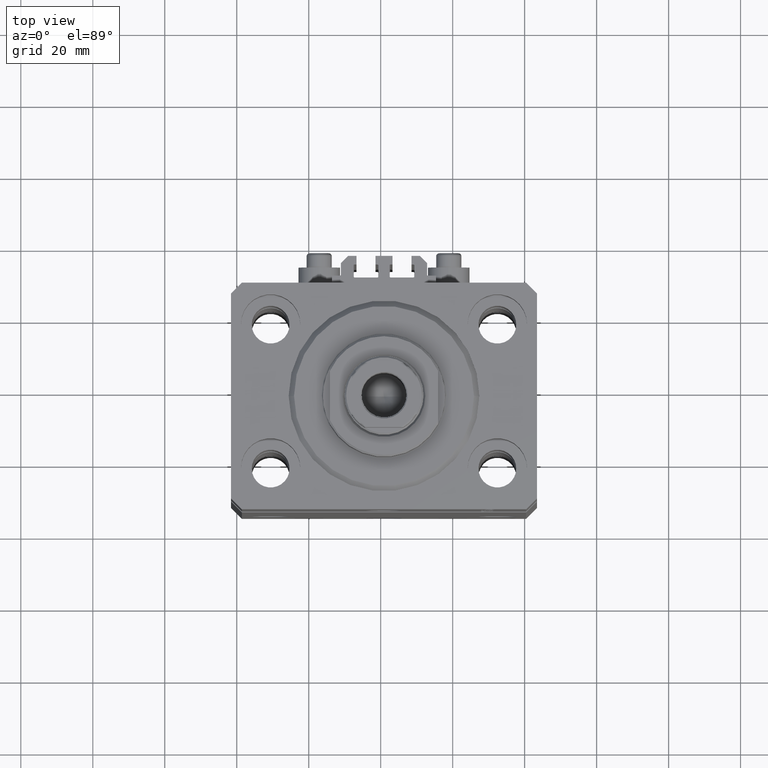
[diagram: clean part render]
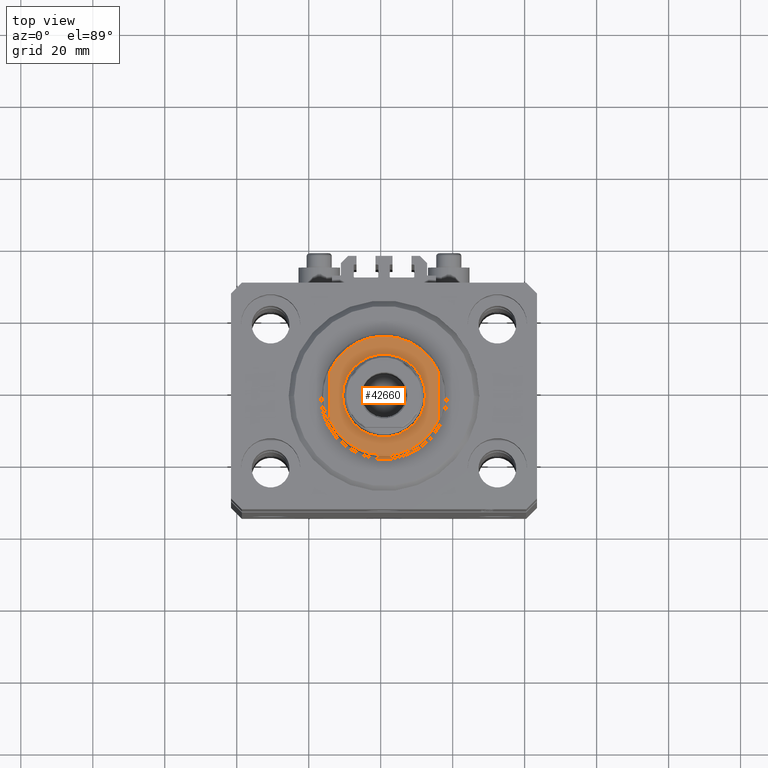
[diagram: same view with one face highlighted and labeled with its STEP entity id]
A machine part, top view. The second image highlights one B-rep face of the part: STEP entity #42660.
In plain terms, the highlighted planar face has unit normal (0, 0, 1).
Its self-contained STEP definition (entity closure, byte-faithful):
#518 = EDGE_CURVE ( 'NONE', #28472, #35227, #28455, .T. ) ;
#1304 = VECTOR ( 'NONE', #27157, 1000.000000000000000 ) ;
#2769 = CARTESIAN_POINT ( 'NONE',  ( 0.000000000000000000, 0.000000000000000000, -7.000000000000000000 ) ) ;
#3521 = FACE_BOUND ( 'NONE', #46338, .T. ) ;
#4639 = CARTESIAN_POINT ( 'NONE',  ( -11.50000000000001776, 0.000000000000000000, -7.000000000000000000 ) ) ;
#5197 = VERTEX_POINT ( 'NONE', #4639 ) ;
#6753 = VECTOR ( 'NONE', #22843, 1000.000000000000000 ) ;
#7567 = DIRECTION ( 'NONE',  ( -0.000000000000000000, -0.000000000000000000, 1.000000000000000000 ) ) ;
#7812 = DIRECTION ( 'NONE',  ( -1.000000000000000000, 0.000000000000000000, 0.000000000000000000 ) ) ;
#7991 = VERTEX_POINT ( 'NONE', #9887 ) ;
#8172 = DIRECTION ( 'NONE',  ( 0.000000000000000000, 0.000000000000000000, -1.000000000000000000 ) ) ;
#8292 = CIRCLE ( 'NONE', #42088, 16.50000000000002132 ) ;
#8727 = CARTESIAN_POINT ( 'NONE',  ( -14.99999999999999645, 6.873863542433817031, -7.000000000000000000 ) ) ;
#8898 = VERTEX_POINT ( 'NONE', #39179 ) ;
#9887 = CARTESIAN_POINT ( 'NONE',  ( 14.99999999999999645, 6.873863542433817031, -7.000000000000000000 ) ) ;
#10800 = CARTESIAN_POINT ( 'NONE',  ( -15.00000000000000000, -42.42640687119285303, -7.000000000000000000 ) ) ;
#10820 = EDGE_CURVE ( 'NONE', #8898, #5197, #11347, .T. ) ;
#11347 = CIRCLE ( 'NONE', #12169, 11.50000000000001776 ) ;
#11409 = AXIS2_PLACEMENT_3D ( 'NONE', #18520, #8172, #26140 ) ;
#11611 = FACE_OUTER_BOUND ( 'NONE', #37000, .T. ) ;
#11944 = EDGE_CURVE ( 'NONE', #7991, #28472, #16075, .T. ) ;
#12169 = AXIS2_PLACEMENT_3D ( 'NONE', #18403, #7567, #7812 ) ;
#12550 = DIRECTION ( 'NONE',  ( -1.000000000000000000, 0.000000000000000000, 0.000000000000000000 ) ) ;
#15844 = DIRECTION ( 'NONE',  ( -1.000000000000000000, 0.000000000000000000, 0.000000000000000000 ) ) ;
#16075 = LINE ( 'NONE', #27404, #1304 ) ;
#16486 = DIRECTION ( 'NONE',  ( -0.000000000000000000, -0.000000000000000000, 1.000000000000000000 ) ) ;
#16512 = ORIENTED_EDGE ( 'NONE', *, *, #42275, .T. ) ;
#18403 = CARTESIAN_POINT ( 'NONE',  ( 0.000000000000000000, 0.000000000000000000, -7.000000000000000000 ) ) ;
#18520 = CARTESIAN_POINT ( 'NONE',  ( 0.000000000000000000, 0.000000000000000000, -7.000000000000000000 ) ) ;
#18536 = AXIS2_PLACEMENT_3D ( 'NONE', #43058, #16486, #12550 ) ;
#20110 = CIRCLE ( 'NONE', #18536, 11.50000000000001776 ) ;
#21440 = ORIENTED_EDGE ( 'NONE', *, *, #11944, .T. ) ;
#22270 = ORIENTED_EDGE ( 'NONE', *, *, #518, .T. ) ;
#22843 = DIRECTION ( 'NONE',  ( -0.000000000000000000, -1.000000000000000000, -0.000000000000000000 ) ) ;
#22925 = VERTEX_POINT ( 'NONE', #8727 ) ;
#22985 = ORIENTED_EDGE ( 'NONE', *, *, #27099, .F. ) ;
#24699 = ORIENTED_EDGE ( 'NONE', *, *, #10820, .T. ) ;
#26140 = DIRECTION ( 'NONE',  ( -1.000000000000000000, 0.000000000000000000, -0.000000000000000000 ) ) ;
#26229 = CARTESIAN_POINT ( 'NONE',  ( -14.99999999999999645, -6.873863542433817031, -7.000000000000000000 ) ) ;
#26446 = CARTESIAN_POINT ( 'NONE',  ( 0.000000000000000000, 0.000000000000000000, -7.000000000000000000 ) ) ;
#26538 = LINE ( 'NONE', #10800, #6753 ) ;
#27099 = EDGE_CURVE ( 'NONE', #22925, #35227, #26538, .T. ) ;
#27157 = DIRECTION ( 'NONE',  ( 0.000000000000000000, -1.000000000000000000, -0.000000000000000000 ) ) ;
#27404 = CARTESIAN_POINT ( 'NONE',  ( 15.00000000000000000, -42.42640687119285303, -7.000000000000000000 ) ) ;
#27629 = AXIS2_PLACEMENT_3D ( 'NONE', #2769, #37180, #33003 ) ;
#27957 = EDGE_CURVE ( 'NONE', #5197, #8898, #20110, .T. ) ;
#28455 = CIRCLE ( 'NONE', #27629, 16.50000000000002132 ) ;
#28472 = VERTEX_POINT ( 'NONE', #44461 ) ;
#30567 = PLANE ( 'NONE',  #11409 ) ;
#33003 = DIRECTION ( 'NONE',  ( -1.000000000000000000, 0.000000000000000000, 0.000000000000000000 ) ) ;
#35227 = VERTEX_POINT ( 'NONE', #26229 ) ;
#37000 = EDGE_LOOP ( 'NONE', ( #16512, #21440, #22270, #22985 ) ) ;
#37180 = DIRECTION ( 'NONE',  ( 0.000000000000000000, 0.000000000000000000, -1.000000000000000000 ) ) ;
#38246 = DIRECTION ( 'NONE',  ( 0.000000000000000000, 0.000000000000000000, -1.000000000000000000 ) ) ;
#39179 = CARTESIAN_POINT ( 'NONE',  ( 11.50000000000001776, 1.408343819019458543E-15, -7.000000000000000000 ) ) ;
#39978 = ORIENTED_EDGE ( 'NONE', *, *, #27957, .T. ) ;
#42088 = AXIS2_PLACEMENT_3D ( 'NONE', #26446, #38246, #15844 ) ;
#42275 = EDGE_CURVE ( 'NONE', #22925, #7991, #8292, .T. ) ;
#42660 = ADVANCED_FACE ( 'NONE', ( #3521, #11611 ), #30567, .T. ) ;
#43058 = CARTESIAN_POINT ( 'NONE',  ( 0.000000000000000000, 0.000000000000000000, -7.000000000000000000 ) ) ;
#44461 = CARTESIAN_POINT ( 'NONE',  ( 14.99999999999999645, -6.873863542433817031, -7.000000000000000000 ) ) ;
#46338 = EDGE_LOOP ( 'NONE', ( #39978, #24699 ) ) ;